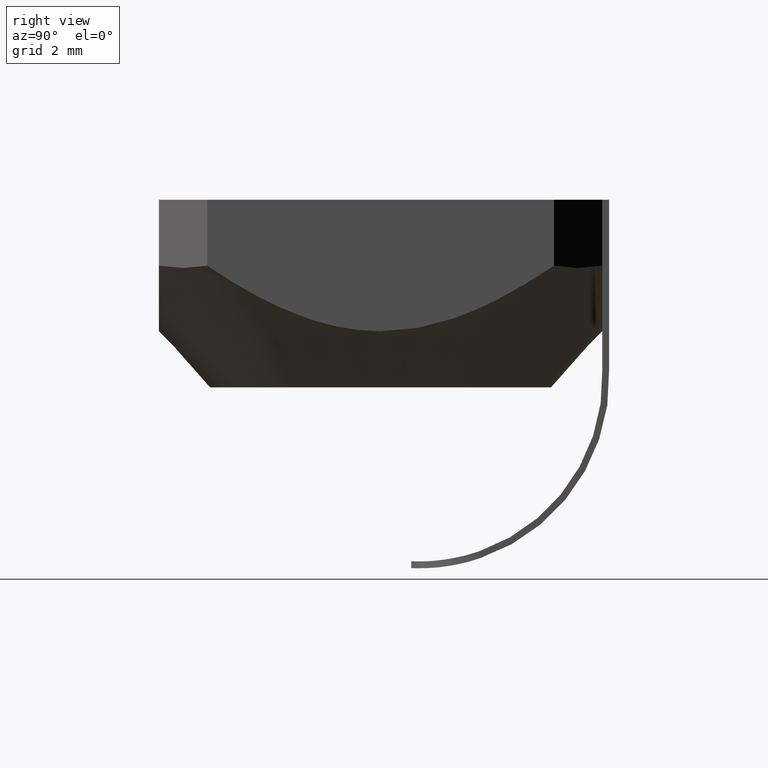
[diagram: clean part render]
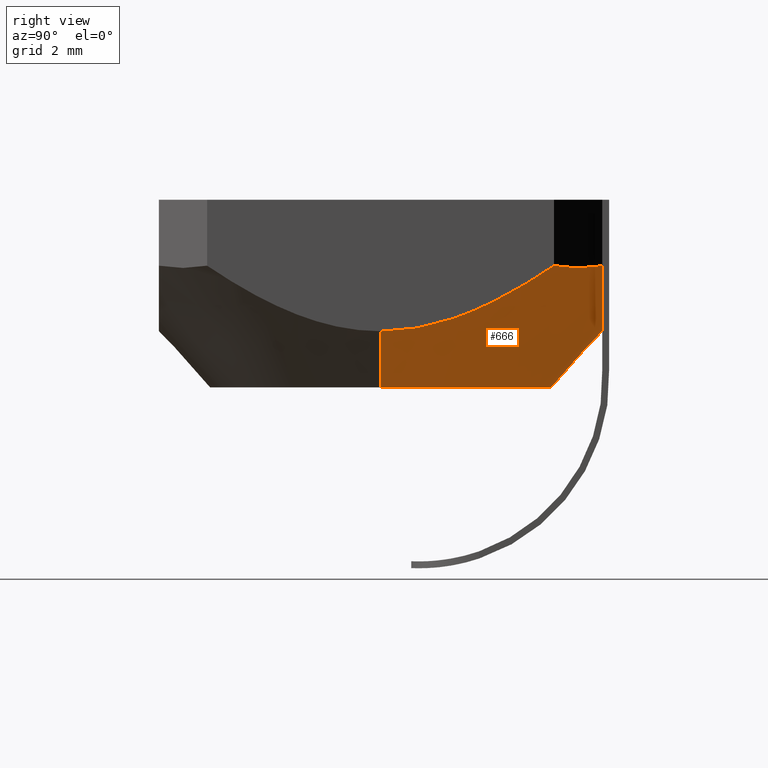
[diagram: same view with one face highlighted and labeled with its STEP entity id]
A machine part, right view. The second image highlights one B-rep face of the part: STEP entity #666.
In plain terms, the highlighted conical surface has half-angle 42.368 deg.
Its self-contained STEP definition (entity closure, byte-faithful):
#1 = CARTESIAN_POINT ( 'NONE',  ( 3.516309637117078335, 6.500000000000005329, -2.888207196025829315 ) ) ;
#19 = VERTEX_POINT ( 'NONE', #696 ) ;
#21 = CARTESIAN_POINT ( 'NONE',  ( -6.499999999966561859, 4.703623633186841069, -2.191522643361974332 ) ) ;
#24 = CARTESIAN_POINT ( 'NONE',  ( -6.499999999999999112, 0.9207822176421314175, -3.800343512463973727 ) ) ;
#26 = DIRECTION ( 'NONE',  ( 1.000000000000000000, 0.0000000000000000000, 1.048460935350610842E-16 ) ) ;
#61 = CARTESIAN_POINT ( 'NONE',  ( -8.272713925181710337, 2.747838738850358616E-15, -1.911934207335163727 ) ) ;
#64 = CARTESIAN_POINT ( 'NONE',  ( -6.500000000012470025, 5.085786437677112026, -1.933334202242378286 ) ) ;
#65 = CARTESIAN_POINT ( 'NONE',  ( 3.107124630055570602, 6.500000000000005329, -3.094845577961468308 ) ) ;
#74 = CARTESIAN_POINT ( 'NONE',  ( 4.314592139161903539, 6.500000000000005329, -2.436609138634550753 ) ) ;
#89 = CARTESIAN_POINT ( 'NONE',  ( 5.085786390127794654, 6.500000000000004441, -1.933334234377364291 ) ) ;
#99 = CARTESIAN_POINT ( 'NONE',  ( -6.500000000000000000, 1.815724347486218138, -3.598234520951652637 ) ) ;
#109 = EDGE_CURVE ( 'NONE', #19, #804, #298, .T. ) ;
#113 = CARTESIAN_POINT ( 'NONE',  ( 6.500000000012471801, 5.085786437614437716, -1.933334202284715309 ) ) ;
#141 = DIRECTION ( 'NONE',  ( 0.6738935147379919721, 8.216221638422233690E-17, 0.7388284853699643717 ) ) ;
#142 = CARTESIAN_POINT ( 'NONE',  ( 6.500000000000000888, 2.268358371881253341E-15, -3.855463141347035716 ) ) ;
#147 = CARTESIAN_POINT ( 'NONE',  ( 4.703623280297410503, 6.500000000000005329, -2.191522878798116025 ) ) ;
#149 = VECTOR ( 'NONE', #943, 1000.000000000000114 ) ;
#155 = DIRECTION ( 'NONE',  ( -1.112060755793410790E-16, 1.112060755793410790E-16, 1.000000000000000000 ) ) ;
#170 = CARTESIAN_POINT ( 'NONE',  ( -6.499999999999999112, 1.564844549028617558E-15, -3.855463141347041045 ) ) ;
#171 = DIRECTION ( 'NONE',  ( -1.112060755793410790E-16, 1.112060755793410790E-16, 1.000000000000000000 ) ) ;
#183 = EDGE_CURVE ( 'NONE', #508, #477, #771, .T. ) ;
#210 = CARTESIAN_POINT ( 'NONE',  ( 6.500000000012471801, 5.085786437614437716, -1.933334202284715309 ) ) ;
#215 = CARTESIAN_POINT ( 'NONE',  ( 5.085786390127794654, 6.500000000000004441, -1.933334234377364291 ) ) ;
#217 = CARTESIAN_POINT ( 'NONE',  ( -5.085786369713886756, 6.500000020414698376, -1.933334230541635002 ) ) ;
#248 = CARTESIAN_POINT ( 'NONE',  ( -8.673617379884035472E-16, 1.734723475976807094E-15, -1.911934207335162839 ) ) ;
#252 = EDGE_CURVE ( 'NONE', #676, #440, #284, .T. ) ;
#254 = CARTESIAN_POINT ( 'NONE',  ( 5.085786390127794654, 6.500000000000004441, -1.933334234377364291 ) ) ;
#272 = EDGE_CURVE ( 'NONE', #19, #676, #494, .T. ) ;
#280 = CARTESIAN_POINT ( 'NONE',  ( 6.500000000000000888, 0.4651318099034550402, -3.855463141347036604 ) ) ;
#284 = LINE ( 'NONE', #61, #149 ) ;
#287 = CARTESIAN_POINT ( 'NONE',  ( -4.703608129623752632, 6.499999999966569852, -2.191533114543351868 ) ) ;
#291 = CARTESIAN_POINT ( 'NONE',  ( 6.500000000000000000, 4.703607954553438830, -2.191533235836048643 ) ) ;
#298 = LINE ( 'NONE', #906, #560 ) ;
#315 = ORIENTED_EDGE ( 'NONE', *, *, #252, .T. ) ;
#319 = CARTESIAN_POINT ( 'NONE',  ( -6.500000000012470025, 5.085786437677112026, -1.933334202242378286 ) ) ;
#325 = VERTEX_POINT ( 'NONE', #210 ) ;
#360 = CARTESIAN_POINT ( 'NONE',  ( 6.500000000000000888, 0.9206392684270442439, -3.800366371404682475 ) ) ;
#376 = FACE_OUTER_BOUND ( 'NONE', #662, .T. ) ;
#390 = CARTESIAN_POINT ( 'NONE',  ( -5.000000003148242556, 2.347935450215647433E-15, -5.500000002871544780 ) ) ;
#417 = B_SPLINE_CURVE_WITH_KNOTS ( 'NONE', 3,
 ( #319, #21, #823, #743, #471, #610, #99, #24, #539, #170 ),
 .UNSPECIFIED., .F., .F.,
 ( 4, 2, 2, 2, 4 ),
 ( 8.321467144627602380E-14, 0.001375070618102952223, 0.002750141236122689761, 0.004125211854142427081, 0.005500282472162164836 ),
 .UNSPECIFIED. ) ;
#429 = CARTESIAN_POINT ( 'NONE',  ( -3.107021169950536343, 6.500000000000005329, -3.094896641255540093 ) ) ;
#438 = DIRECTION ( 'NONE',  ( 1.000000000000000000, 0.0000000000000000000, 1.734723474884541410E-16 ) ) ;
#439 = CARTESIAN_POINT ( 'NONE',  ( 0.9208216613374820003, 6.500000000000005329, -3.800336668033398091 ) ) ;
#440 = VERTEX_POINT ( 'NONE', #461 ) ;
#443 = CARTESIAN_POINT ( 'NONE',  ( -0.9205997629207802735, 6.500000000000005329, -3.800373223944549128 ) ) ;
#458 = CARTESIAN_POINT ( 'NONE',  ( -6.500000000012470025, 5.085786437677112026, -1.933334202242378286 ) ) ;
#461 = CARTESIAN_POINT ( 'NONE',  ( -6.499999999999999112, 1.564844549028617558E-15, -3.855463141347041045 ) ) ;
#462 = ORIENTED_EDGE ( 'NONE', *, *, #653, .F. ) ;
#471 = CARTESIAN_POINT ( 'NONE',  ( -6.500000000000000000, 3.107104337365197644, -3.094856044108543980 ) ) ;
#475 = ORIENTED_EDGE ( 'NONE', *, *, #876, .T. ) ;
#477 = VERTEX_POINT ( 'NONE', #458 ) ;
#494 = CIRCLE ( 'NONE', #834, 5.000000003148241667 ) ;
#506 = CARTESIAN_POINT ( 'NONE',  ( 6.500000000000001776, 3.516244482516675429, -2.888242014042283312 ) ) ;
#508 = VERTEX_POINT ( 'NONE', #217 ) ;
#511 = CARTESIAN_POINT ( 'NONE',  ( -0.4648848365141757255, 6.500000000000005329, -3.855480797759075706 ) ) ;
#516 = CARTESIAN_POINT ( 'NONE',  ( -2.258066199381795425, 6.500000000000005329, -3.449969970471691738 ) ) ;
#535 = VERTEX_POINT ( 'NONE', #89 ) ;
#539 = CARTESIAN_POINT ( 'NONE',  ( -6.500000000000000000, 0.4650942893279675916, -3.855463141347040601 ) ) ;
#560 = VECTOR ( 'NONE', #141, 1000.000000000000114 ) ;
#590 = ORIENTED_EDGE ( 'NONE', *, *, #109, .F. ) ;
#591 = CARTESIAN_POINT ( 'NONE',  ( -4.314559273513300042, 6.500000000000005329, -2.436630056963112079 ) ) ;
#610 = CARTESIAN_POINT ( 'NONE',  ( -6.499999999999999112, 2.258188589613317809, -3.449924592231263798 ) ) ;
#613 = CONICAL_SURFACE ( 'NONE', #812, 8.272713925181706784, 0.7394660560889116940 ) ;
#638 = ORIENTED_EDGE ( 'NONE', *, *, #888, .F. ) ;
#645 = CARTESIAN_POINT ( 'NONE',  ( 6.500000000012471801, 5.085786437614437716, -1.933334202284715309 ) ) ;
#647 = ORIENTED_EDGE ( 'NONE', *, *, #272, .T. ) ;
#653 = EDGE_CURVE ( 'NONE', #477, #440, #417, .T. ) ;
#657 = CARTESIAN_POINT ( 'NONE',  ( 6.500000000000000888, 1.815600839890428864, -3.598271834400735170 ) ) ;
#662 = EDGE_LOOP ( 'NONE', ( #647, #315, #462, #914, #475, #831, #638, #590 ) ) ;
#666 = ADVANCED_FACE ( 'NONE', ( #376 ), #613, .T. ) ;
#676 = VERTEX_POINT ( 'NONE', #390 ) ;
#685 = B_SPLINE_CURVE_WITH_KNOTS ( 'NONE', 3,
 ( #781, #287, #591, #789, #429, #516, #720, #443, #511, #724, #439, #721, #937, #65, #1, #74, #147, #215 ),
 .UNSPECIFIED., .F., .F.,
 ( 4, 2, 2, 2, 2, 2, 2, 2, 4 ),
 ( 0.0000000000000000000, 0.001375126054163217700, 0.002750252108326434099, 0.004125378162489650065, 0.005500504216652866464, 0.006875630270816082863, 0.008250756324979300130, 0.009625882379142516529, 0.01100100843330573119 ),
 .UNSPECIFIED. ) ;
#688 = CARTESIAN_POINT ( 'NONE',  ( 6.028595471052790700, 5.557190966534635734, -2.021894488023176617 ) ) ;
#696 = CARTESIAN_POINT ( 'NONE',  ( 5.000000003148240779, 1.335708759934739698E-15, -5.500000002871543003 ) ) ;
#720 = CARTESIAN_POINT ( 'NONE',  ( -1.815581859196778503, 6.500000000000005329, -3.598278188707848546 ) ) ;
#721 = CARTESIAN_POINT ( 'NONE',  ( 1.815743256735754318, 6.500000000000005329, -3.598228187127603395 ) ) ;
#724 = CARTESIAN_POINT ( 'NONE',  ( 0.4653350753289152153, 6.500000000000005329, -3.855445476386987647 ) ) ;
#726 = CARTESIAN_POINT ( 'NONE',  ( 6.500000000000002665, 4.314560848977908591, -2.436628880351495496 ) ) ;
#743 = CARTESIAN_POINT ( 'NONE',  ( -6.499999999999996447, 3.516297865762422870, -2.888213576328815702 ) ) ;
#750 = EDGE_CURVE ( 'NONE', #325, #535, #849, .T. ) ;
#763 = B_SPLINE_CURVE_WITH_KNOTS ( 'NONE', 3,
 ( #142, #280, #360, #657, #944, #935, #506, #726, #291, #645 ),
 .UNSPECIFIED., .F., .F.,
 ( 4, 2, 2, 2, 4 ),
 ( 0.005500282472162170040, 0.006875464021324488584, 0.008250645570486806260, 0.009625827119649123936, 0.01100100866881144161 ),
 .UNSPECIFIED. ) ;
#771 = B_SPLINE_CURVE_WITH_KNOTS ( 'NONE', 3,
 ( #786, #856, #918, #64 ),
 .UNSPECIFIED., .F., .F.,
 ( 4, 4 ),
 ( 0.0000000000000000000, 0.002000000057714793490 ),
 .UNSPECIFIED. ) ;
#781 = CARTESIAN_POINT ( 'NONE',  ( -5.085786369713886756, 6.500000020414698376, -1.933334230541635002 ) ) ;
#786 = CARTESIAN_POINT ( 'NONE',  ( -5.085786369713886756, 6.500000020414698376, -1.933334230541635002 ) ) ;
#788 = CARTESIAN_POINT ( 'NONE',  ( -4.683470219463361509E-16, 1.335708759934739698E-15, -5.500000002871543892 ) ) ;
#789 = CARTESIAN_POINT ( 'NONE',  ( -3.516232571179676913, 6.500000000000005329, -2.888248467003529107 ) ) ;
#804 = VERTEX_POINT ( 'NONE', #848 ) ;
#812 = AXIS2_PLACEMENT_3D ( 'NONE', #248, #171, #26 ) ;
#823 = CARTESIAN_POINT ( 'NONE',  ( -6.500000000000000888, 4.314590728831701583, -2.436610215365375254 ) ) ;
#831 = ORIENTED_EDGE ( 'NONE', *, *, #750, .F. ) ;
#834 = AXIS2_PLACEMENT_3D ( 'NONE', #788, #155, #438 ) ;
#837 = CARTESIAN_POINT ( 'NONE',  ( 5.557190925268868043, 6.028595512358042363, -2.021894485313493472 ) ) ;
#848 = CARTESIAN_POINT ( 'NONE',  ( 6.500000000000000888, 2.268358371881253341E-15, -3.855463141347035716 ) ) ;
#849 = B_SPLINE_CURVE_WITH_KNOTS ( 'NONE', 3,
 ( #113, #688, #837, #254 ),
 .UNSPECIFIED., .F., .F.,
 ( 4, 4 ),
 ( 1.619403174964312234E-14, 0.002000000033620774175 ),
 .UNSPECIFIED. ) ;
#856 = CARTESIAN_POINT ( 'NONE',  ( -5.557190930952024210, 6.028595506674885307, -2.021894486381079936 ) ) ;
#876 = EDGE_CURVE ( 'NONE', #508, #535, #685, .T. ) ;
#888 = EDGE_CURVE ( 'NONE', #804, #325, #763, .T. ) ;
#906 = CARTESIAN_POINT ( 'NONE',  ( 8.272713925181706784, 1.734723475976807094E-15, -1.911934207335161950 ) ) ;
#914 = ORIENTED_EDGE ( 'NONE', *, *, #183, .F. ) ;
#918 = CARTESIAN_POINT ( 'NONE',  ( -6.028595465388295160, 5.557190972238614357, -2.021894489101665027 ) ) ;
#935 = CARTESIAN_POINT ( 'NONE',  ( 6.500000000000002665, 3.107041589949054661, -3.094886115538637128 ) ) ;
#937 = CARTESIAN_POINT ( 'NONE',  ( 2.258238273969045196, 6.500000000000005329, -3.449905789529593036 ) ) ;
#943 = DIRECTION ( 'NONE',  ( -0.6738935147379921942, 1.646903699632265117E-16, 0.7388284853699641497 ) ) ;
#944 = CARTESIAN_POINT ( 'NONE',  ( 6.500000000000000888, 2.258115985482339383, -3.449951132496112738 ) ) ;